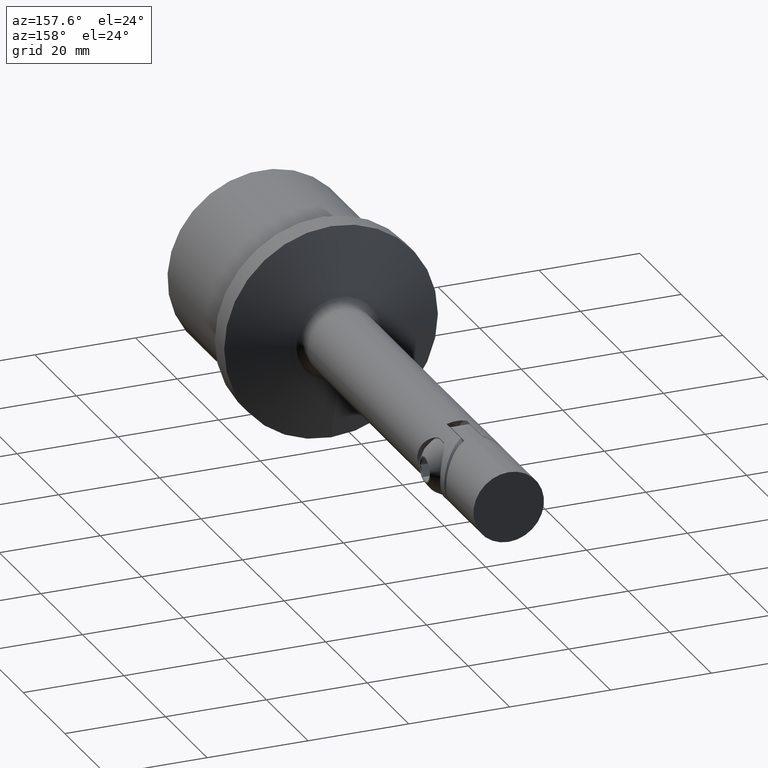
[diagram: clean part render]
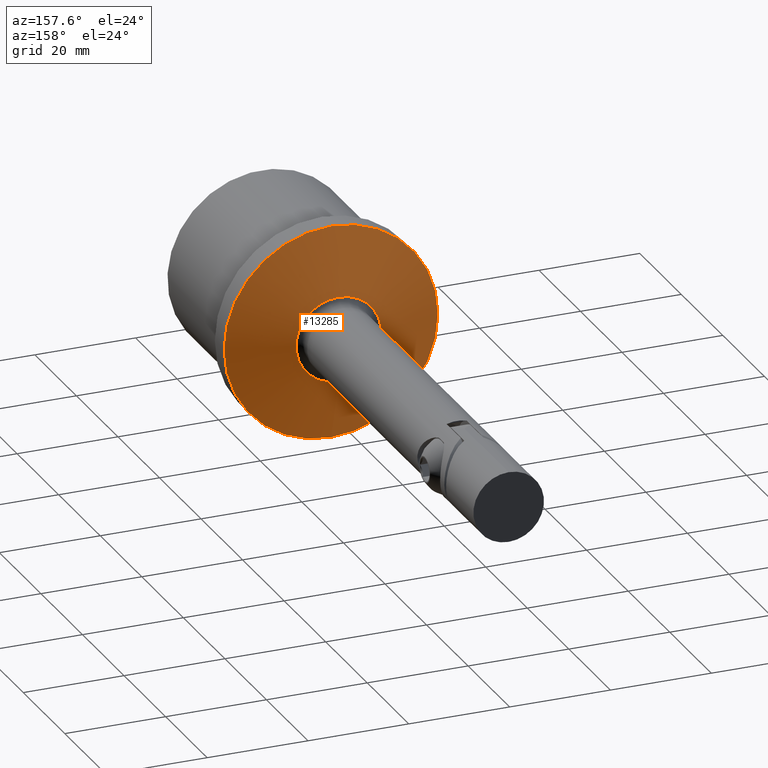
[diagram: same view with one face highlighted and labeled with its STEP entity id]
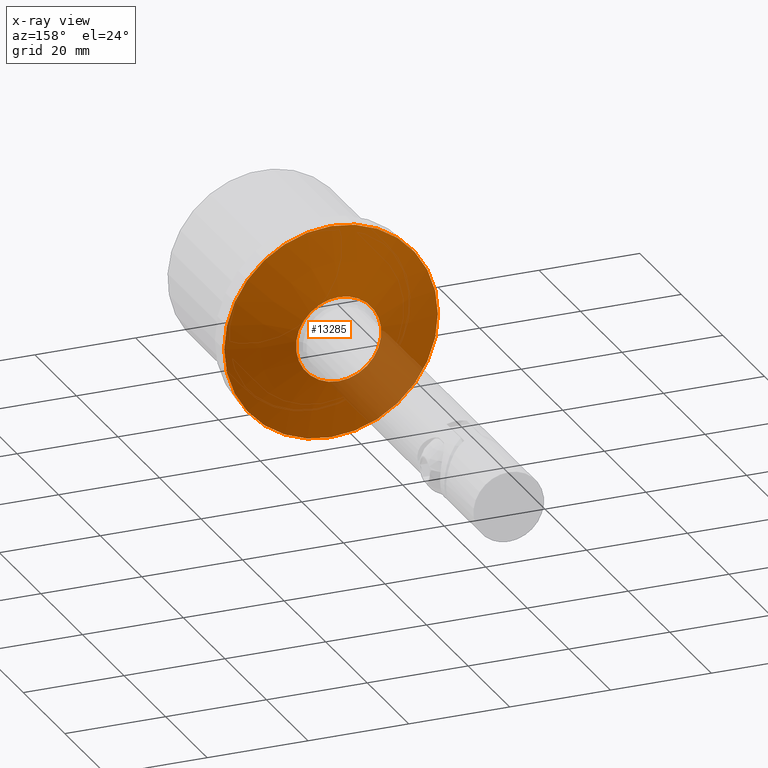
[diagram: x-ray of the same camera — body ghosted, the highlighted face saturated]
A machine part, auxiliary view. The second image highlights one B-rep face of the part: STEP entity #13285.
The next image is the same camera in x-ray: the body ghosted, the highlighted face saturated — about 13% of this face is hidden behind the body in this view.
In plain terms, the highlighted conical surface has half-angle 74 deg.
Its self-contained STEP definition (entity closure, byte-faithful):
#512 = ORIENTED_EDGE ( 'NONE', *, *, #9588, .F. ) ;
#711 = DIRECTION ( 'NONE',  ( -0.000000000000000000, -1.000000000000000000, -0.000000000000000000 ) ) ;
#1479 = CIRCLE ( 'NONE', #13539, 8.448725288365993791 ) ;
#1499 = CONICAL_SURFACE ( 'NONE', #10569, 21.19999999999999929, 1.291543646475799667 ) ;
#2074 = CIRCLE ( 'NONE', #7764, 21.19999999999999929 ) ;
#2299 = CARTESIAN_POINT ( 'NONE',  ( 0.000000000000000000, 38.15636918610408657, 0.000000000000000000 ) ) ;
#2382 = DIRECTION ( 'NONE',  ( -0.000000000000000000, -1.000000000000000000, -0.000000000000000000 ) ) ;
#3414 = EDGE_CURVE ( 'NONE', #11714, #11714, #1479, .T. ) ;
#3440 = DIRECTION ( 'NONE',  ( 0.000000000000000000, 0.000000000000000000, -1.000000000000000000 ) ) ;
#3828 = EDGE_LOOP ( 'NONE', ( #512 ) ) ;
#3900 = DIRECTION ( 'NONE',  ( 0.000000000000000000, 0.000000000000000000, -1.000000000000000000 ) ) ;
#3987 = DIRECTION ( 'NONE',  ( -0.000000000000000000, -1.000000000000000000, -0.000000000000000000 ) ) ;
#4044 = ORIENTED_EDGE ( 'NONE', *, *, #3414, .T. ) ;
#4894 = CARTESIAN_POINT ( 'NONE',  ( 0.000000000000000000, 34.50000000000000000, 0.000000000000000000 ) ) ;
#5181 = EDGE_LOOP ( 'NONE', ( #4044 ) ) ;
#7473 = CARTESIAN_POINT ( 'NONE',  ( 0.000000000000000000, 34.50000000000000000, -21.19999999999999929 ) ) ;
#7764 = AXIS2_PLACEMENT_3D ( 'NONE', #9362, #3987, #12545 ) ;
#8549 = CARTESIAN_POINT ( 'NONE',  ( 0.000000000000000000, 38.15636918610408657, -8.448725288365993791 ) ) ;
#9362 = CARTESIAN_POINT ( 'NONE',  ( 0.000000000000000000, 34.50000000000000000, 0.000000000000000000 ) ) ;
#9588 = EDGE_CURVE ( 'NONE', #12740, #12740, #2074, .T. ) ;
#10569 = AXIS2_PLACEMENT_3D ( 'NONE', #4894, #711, #3900 ) ;
#10877 = FACE_OUTER_BOUND ( 'NONE', #3828, .T. ) ;
#11216 = FACE_BOUND ( 'NONE', #5181, .T. ) ;
#11714 = VERTEX_POINT ( 'NONE', #8549 ) ;
#12545 = DIRECTION ( 'NONE',  ( 0.000000000000000000, 0.000000000000000000, -1.000000000000000000 ) ) ;
#12740 = VERTEX_POINT ( 'NONE', #7473 ) ;
#13285 = ADVANCED_FACE ( 'NONE', ( #11216, #10877 ), #1499, .T. ) ;
#13539 = AXIS2_PLACEMENT_3D ( 'NONE', #2299, #2382, #3440 ) ;